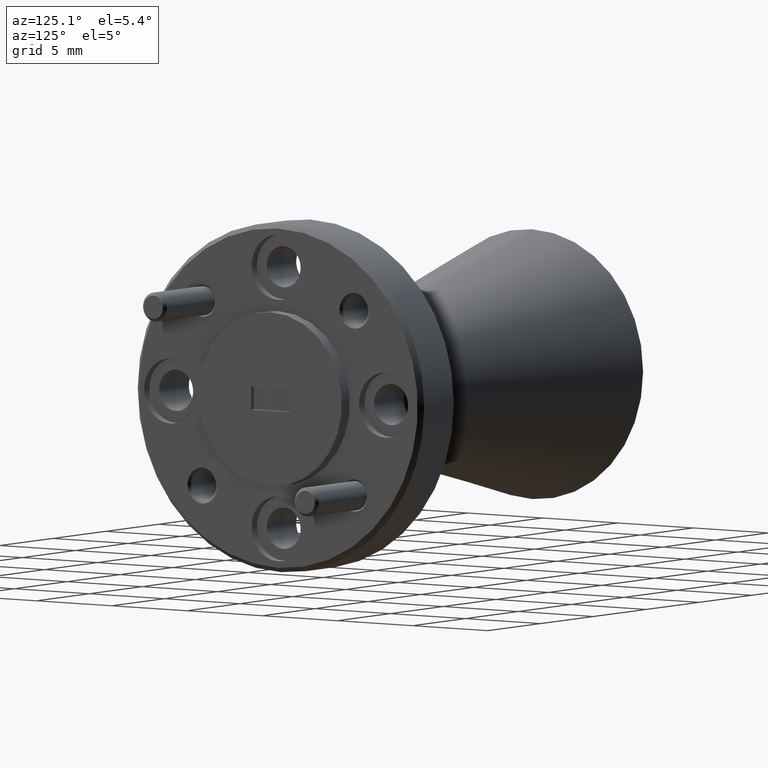
[diagram: clean part render]
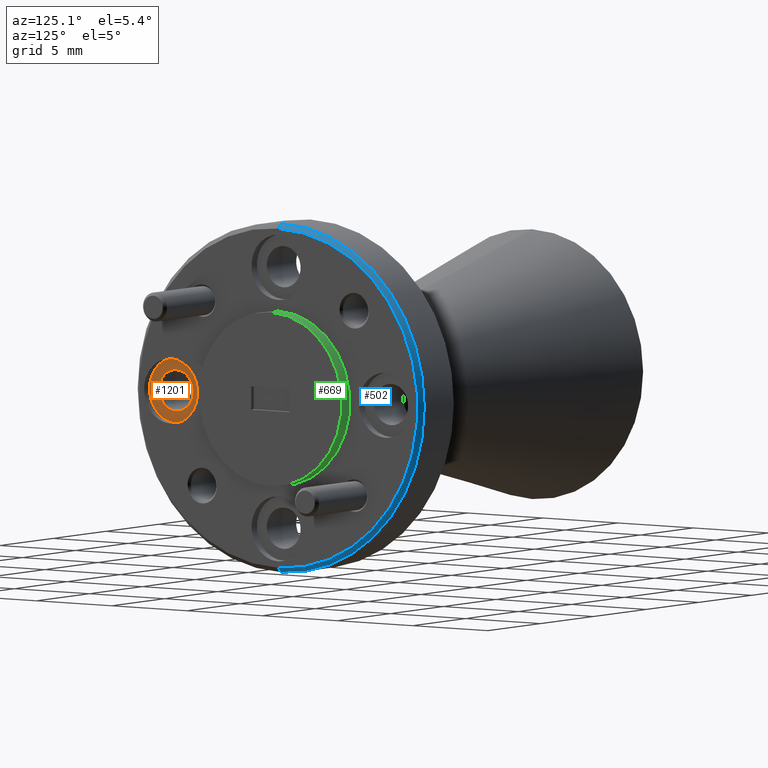
[diagram: same view with three faces highlighted in distinct colors, each labeled with its STEP entity id]
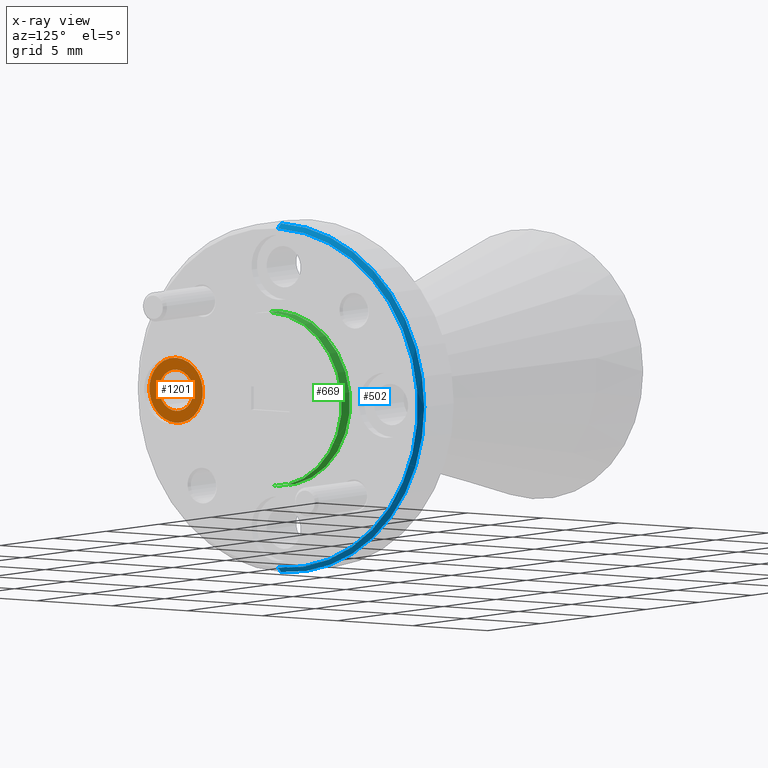
[diagram: x-ray of the same camera — body ghosted, the three highlighted faces saturated]
A machine part, auxiliary view with three faces highlighted in distinct colors.
The next image is the same camera in x-ray (body ghosted, the three faces saturated) — at least one of them is partly hidden behind the body in this view.
Their STEP definitions:

[orange] entity #1201 — the highlighted planar face has unit normal (1, 0, 0).
#45 = CARTESIAN_POINT ( 'NONE',  ( -0.04999999999999999600, -0.2812500000000000600, 0.04449999999999972000 ) ) ;
#86 = DIRECTION ( 'NONE',  ( 0.0000000000000000000, 0.0000000000000000000, -1.000000000000000000 ) ) ;
#87 = DIRECTION ( 'NONE',  ( 0.0000000000000000000, 0.0000000000000000000, -1.000000000000000000 ) ) ;
#96 = VERTEX_POINT ( 'NONE', #963 ) ;
#109 = ORIENTED_EDGE ( 'NONE', *, *, #1908, .T. ) ;
#164 = CIRCLE ( 'NONE', #1669, 0.07000000000000000700 ) ;
#186 = AXIS2_PLACEMENT_3D ( 'NONE', #924, #2053, #252 ) ;
#240 = EDGE_CURVE ( 'NONE', #886, #1379, #647, .T. ) ;
#252 = DIRECTION ( 'NONE',  ( 0.0000000000000000000, 0.0000000000000000000, -1.000000000000000000 ) ) ;
#283 = DIRECTION ( 'NONE',  ( 1.000000000000000000, 0.0000000000000000000, 0.0000000000000000000 ) ) ;
#339 = AXIS2_PLACEMENT_3D ( 'NONE', #2142, #1968, #1005 ) ;
#581 = EDGE_CURVE ( 'NONE', #677, #96, #1912, .T. ) ;
#647 = CIRCLE ( 'NONE', #339, 0.04449999999999972000 ) ;
#677 = VERTEX_POINT ( 'NONE', #1159 ) ;
#755 = CARTESIAN_POINT ( 'NONE',  ( -0.04999999999999999600, -0.2812500000000000600, 0.0000000000000000000 ) ) ;
#769 = AXIS2_PLACEMENT_3D ( 'NONE', #755, #1118, #86 ) ;
#886 = VERTEX_POINT ( 'NONE', #45 ) ;
#900 = PLANE ( 'NONE',  #186 ) ;
#924 = CARTESIAN_POINT ( 'NONE',  ( -0.04999999999999999600, -0.2812500000000000600, 0.0000000000000000000 ) ) ;
#963 = CARTESIAN_POINT ( 'NONE',  ( -0.04999999999999999600, -0.2812500000000000600, -0.07000000000000000700 ) ) ;
#1005 = DIRECTION ( 'NONE',  ( 0.0000000000000000000, 0.0000000000000000000, -1.000000000000000000 ) ) ;
#1028 = ORIENTED_EDGE ( 'NONE', *, *, #240, .T. ) ;
#1116 = EDGE_LOOP ( 'NONE', ( #1949, #1165 ) ) ;
#1118 = DIRECTION ( 'NONE',  ( 1.000000000000000000, 0.0000000000000000000, 0.0000000000000000000 ) ) ;
#1159 = CARTESIAN_POINT ( 'NONE',  ( -0.04999999999999999600, -0.2812500000000000600, 0.07000000000000000700 ) ) ;
#1165 = ORIENTED_EDGE ( 'NONE', *, *, #581, .T. ) ;
#1201 = ADVANCED_FACE ( 'NONE', ( #1777, #1433 ), #900, .T. ) ;
#1355 = EDGE_LOOP ( 'NONE', ( #109, #1028 ) ) ;
#1361 = DIRECTION ( 'NONE',  ( 0.0000000000000000000, 0.0000000000000000000, -1.000000000000000000 ) ) ;
#1379 = VERTEX_POINT ( 'NONE', #1390 ) ;
#1390 = CARTESIAN_POINT ( 'NONE',  ( -0.04999999999999999600, -0.2812500000000000600, -0.04449999999999972000 ) ) ;
#1433 = FACE_BOUND ( 'NONE', #1355, .T. ) ;
#1616 = CARTESIAN_POINT ( 'NONE',  ( -0.04999999999999999600, -0.2812500000000000600, 0.0000000000000000000 ) ) ;
#1669 = AXIS2_PLACEMENT_3D ( 'NONE', #1616, #283, #87 ) ;
#1679 = EDGE_CURVE ( 'NONE', #96, #677, #164, .T. ) ;
#1777 = FACE_OUTER_BOUND ( 'NONE', #1116, .T. ) ;
#1839 = DIRECTION ( 'NONE',  ( -1.000000000000000000, -0.0000000000000000000, -0.0000000000000000000 ) ) ;
#1907 = AXIS2_PLACEMENT_3D ( 'NONE', #1983, #1839, #1361 ) ;
#1908 = EDGE_CURVE ( 'NONE', #1379, #886, #1971, .T. ) ;
#1912 = CIRCLE ( 'NONE', #769, 0.07000000000000000700 ) ;
#1949 = ORIENTED_EDGE ( 'NONE', *, *, #1679, .T. ) ;
#1968 = DIRECTION ( 'NONE',  ( -1.000000000000000000, -0.0000000000000000000, -0.0000000000000000000 ) ) ;
#1971 = CIRCLE ( 'NONE', #1907, 0.04449999999999972000 ) ;
#1983 = CARTESIAN_POINT ( 'NONE',  ( -0.04999999999999999600, -0.2812500000000000600, 0.0000000000000000000 ) ) ;
#2053 = DIRECTION ( 'NONE',  ( 1.000000000000000000, 0.0000000000000000000, 0.0000000000000000000 ) ) ;
#2142 = CARTESIAN_POINT ( 'NONE',  ( -0.04999999999999999600, -0.2812500000000000600, 0.0000000000000000000 ) ) ;

[blue] entity #502 — the highlighted conical surface has half-angle 45 deg.
#44 = ORIENTED_EDGE ( 'NONE', *, *, #91, .F. ) ;
#91 = EDGE_CURVE ( 'NONE', #142, #1266, #1263, .T. ) ;
#114 = EDGE_LOOP ( 'NONE', ( #748, #337, #1163, #44 ) ) ;
#117 = VERTEX_POINT ( 'NONE', #1779 ) ;
#142 = VERTEX_POINT ( 'NONE', #1631 ) ;
#146 = VERTEX_POINT ( 'NONE', #954 ) ;
#231 = DIRECTION ( 'NONE',  ( -1.000000000000000000, 0.0000000000000000000, 0.0000000000000000000 ) ) ;
#329 = DIRECTION ( 'NONE',  ( 0.0000000000000000000, 0.0000000000000000000, -1.000000000000000000 ) ) ;
#337 = ORIENTED_EDGE ( 'NONE', *, *, #1967, .T. ) ;
#373 = DIRECTION ( 'NONE',  ( 1.000000000000000000, -0.0000000000000000000, -0.0000000000000000000 ) ) ;
#502 = ADVANCED_FACE ( 'NONE', ( #962 ), #1638, .T. ) ;
#640 = DIRECTION ( 'NONE',  ( -1.000000000000000000, 0.0000000000000000000, 0.0000000000000000000 ) ) ;
#682 = EDGE_CURVE ( 'NONE', #1266, #117, #1179, .T. ) ;
#748 = ORIENTED_EDGE ( 'NONE', *, *, #762, .F. ) ;
#762 = EDGE_CURVE ( 'NONE', #146, #142, #2116, .T. ) ;
#954 = CARTESIAN_POINT ( 'NONE',  ( -0.02999999999999999500, 4.531193156845207900E-017, -0.3650000000000002100 ) ) ;
#962 = FACE_OUTER_BOUND ( 'NONE', #114, .T. ) ;
#983 = CARTESIAN_POINT ( 'NONE',  ( -0.04000000000000009100, 0.0000000000000000000, 0.0000000000000000000 ) ) ;
#1042 = CARTESIAN_POINT ( 'NONE',  ( -0.04000000000000009100, 4.592425496802575500E-017, 0.3750000000000000600 ) ) ;
#1080 = CARTESIAN_POINT ( 'NONE',  ( -0.02999999999999999500, 0.0000000000000000000, 0.0000000000000000000 ) ) ;
#1090 = DIRECTION ( 'NONE',  ( 0.0000000000000000000, 0.0000000000000000000, 1.000000000000000000 ) ) ;
#1150 = CARTESIAN_POINT ( 'NONE',  ( -0.02999999999999999500, 0.0000000000000000000, 0.3650000000000002100 ) ) ;
#1163 = ORIENTED_EDGE ( 'NONE', *, *, #682, .F. ) ;
#1179 = CIRCLE ( 'NONE', #1718, 0.3750000000000000600 ) ;
#1194 = VECTOR ( 'NONE', #2162, 39.37007874015748900 ) ;
#1210 = AXIS2_PLACEMENT_3D ( 'NONE', #1821, #373, #329 ) ;
#1263 = LINE ( 'NONE', #1150, #1915 ) ;
#1266 = VERTEX_POINT ( 'NONE', #1042 ) ;
#1270 = LINE ( 'NONE', #1348, #1194 ) ;
#1329 = DIRECTION ( 'NONE',  ( 0.0000000000000000000, 0.0000000000000000000, -1.000000000000000000 ) ) ;
#1348 = CARTESIAN_POINT ( 'NONE',  ( -0.02999999999999999500, 4.469960816887841600E-017, -0.3650000000000002100 ) ) ;
#1631 = CARTESIAN_POINT ( 'NONE',  ( -0.02999999999999999500, 0.0000000000000000000, 0.3650000000000002100 ) ) ;
#1638 = CONICAL_SURFACE ( 'NONE', #2047, 0.3650000000000002100, 0.7853981633974346200 ) ;
#1718 = AXIS2_PLACEMENT_3D ( 'NONE', #983, #640, #1329 ) ;
#1779 = CARTESIAN_POINT ( 'NONE',  ( -0.04000000000000009100, 0.0000000000000000000, -0.3750000000000000600 ) ) ;
#1821 = CARTESIAN_POINT ( 'NONE',  ( -0.02999999999999999500, 0.0000000000000000000, 0.0000000000000000000 ) ) ;
#1915 = VECTOR ( 'NONE', #1948, 39.37007874015748900 ) ;
#1948 = DIRECTION ( 'NONE',  ( -0.7071067811865571200, 0.0000000000000000000, 0.7071067811865378000 ) ) ;
#1967 = EDGE_CURVE ( 'NONE', #146, #117, #1270, .T. ) ;
#2047 = AXIS2_PLACEMENT_3D ( 'NONE', #1080, #231, #1090 ) ;
#2116 = CIRCLE ( 'NONE', #1210, 0.3650000000000002100 ) ;
#2162 = DIRECTION ( 'NONE',  ( -0.7071067811865571200, 8.659560562354815800E-017, -0.7071067811865378000 ) ) ;

[green] entity #669 — the highlighted cylindrical surface (partial cylindrical patch) has radius 4.7625 mm, axis along (1, -0, -0).
#119 = DIRECTION ( 'NONE',  ( 0.0000000000000000000, 0.0000000000000000000, -1.000000000000000000 ) ) ;
#170 = VERTEX_POINT ( 'NONE', #2107 ) ;
#194 = VECTOR ( 'NONE', #2059, 39.37007874015748100 ) ;
#234 = ORIENTED_EDGE ( 'NONE', *, *, #1926, .F. ) ;
#288 = CIRCLE ( 'NONE', #1974, 0.1875000000000000300 ) ;
#306 = CARTESIAN_POINT ( 'NONE',  ( 0.0000000000000000000, 0.0000000000000000000, 0.0000000000000000000 ) ) ;
#346 = VERTEX_POINT ( 'NONE', #354 ) ;
#354 = CARTESIAN_POINT ( 'NONE',  ( 0.0000000000000000000, 2.296212748401287100E-017, 0.1875000000000000300 ) ) ;
#443 = VERTEX_POINT ( 'NONE', #1232 ) ;
#453 = DIRECTION ( 'NONE',  ( 0.0000000000000000000, 0.0000000000000000000, -1.000000000000000000 ) ) ;
#475 = EDGE_CURVE ( 'NONE', #170, #443, #1761, .T. ) ;
#520 = AXIS2_PLACEMENT_3D ( 'NONE', #306, #796, #119 ) ;
#629 = VECTOR ( 'NONE', #665, 39.37007874015748100 ) ;
#665 = DIRECTION ( 'NONE',  ( 1.000000000000000000, -0.0000000000000000000, -0.0000000000000000000 ) ) ;
#669 = ADVANCED_FACE ( 'NONE', ( #858 ), #730, .T. ) ;
#674 = CIRCLE ( 'NONE', #1345, 0.1874999999999999700 ) ;
#730 = CYLINDRICAL_SURFACE ( 'NONE', #520, 0.1874999999999999700 ) ;
#773 = ORIENTED_EDGE ( 'NONE', *, *, #2017, .T. ) ;
#790 = EDGE_LOOP ( 'NONE', ( #1004, #773, #234, #1788 ) ) ;
#796 = DIRECTION ( 'NONE',  ( 1.000000000000000000, -0.0000000000000000000, -0.0000000000000000000 ) ) ;
#858 = FACE_OUTER_BOUND ( 'NONE', #790, .T. ) ;
#866 = DIRECTION ( 'NONE',  ( 0.0000000000000000000, 0.0000000000000000000, -1.000000000000000000 ) ) ;
#1004 = ORIENTED_EDGE ( 'NONE', *, *, #1647, .T. ) ;
#1019 = DIRECTION ( 'NONE',  ( 1.000000000000000000, -0.0000000000000000000, -0.0000000000000000000 ) ) ;
#1232 = CARTESIAN_POINT ( 'NONE',  ( 0.0000000000000000000, 0.0000000000000000000, -0.1875000000000000300 ) ) ;
#1300 = CARTESIAN_POINT ( 'NONE',  ( -0.02999999999999999500, 0.0000000000000000000, 0.0000000000000000000 ) ) ;
#1345 = AXIS2_PLACEMENT_3D ( 'NONE', #1300, #1773, #453 ) ;
#1370 = CARTESIAN_POINT ( 'NONE',  ( 0.0000000000000000000, 0.0000000000000000000, 0.0000000000000000000 ) ) ;
#1499 = CARTESIAN_POINT ( 'NONE',  ( 0.0000000000000000000, 2.296212748401286800E-017, 0.1874999999999999700 ) ) ;
#1525 = LINE ( 'NONE', #1499, #629 ) ;
#1620 = VERTEX_POINT ( 'NONE', #1961 ) ;
#1647 = EDGE_CURVE ( 'NONE', #170, #1620, #674, .T. ) ;
#1761 = LINE ( 'NONE', #2036, #194 ) ;
#1773 = DIRECTION ( 'NONE',  ( 1.000000000000000000, -0.0000000000000000000, -0.0000000000000000000 ) ) ;
#1788 = ORIENTED_EDGE ( 'NONE', *, *, #475, .F. ) ;
#1926 = EDGE_CURVE ( 'NONE', #443, #346, #288, .T. ) ;
#1961 = CARTESIAN_POINT ( 'NONE',  ( -0.02999999999999999500, 2.296212748401286800E-017, 0.1874999999999999700 ) ) ;
#1974 = AXIS2_PLACEMENT_3D ( 'NONE', #1370, #1019, #866 ) ;
#2017 = EDGE_CURVE ( 'NONE', #1620, #346, #1525, .T. ) ;
#2036 = CARTESIAN_POINT ( 'NONE',  ( 0.0000000000000000000, 0.0000000000000000000, -0.1874999999999999700 ) ) ;
#2059 = DIRECTION ( 'NONE',  ( 1.000000000000000000, -0.0000000000000000000, -0.0000000000000000000 ) ) ;
#2107 = CARTESIAN_POINT ( 'NONE',  ( -0.02999999999999999500, 0.0000000000000000000, -0.1874999999999999700 ) ) ;